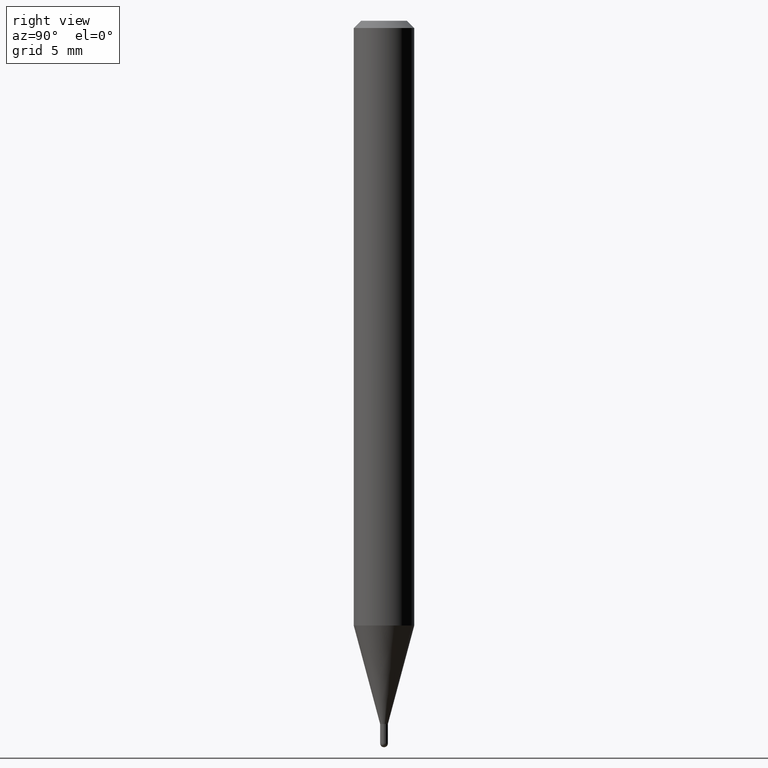
[diagram: clean part render]
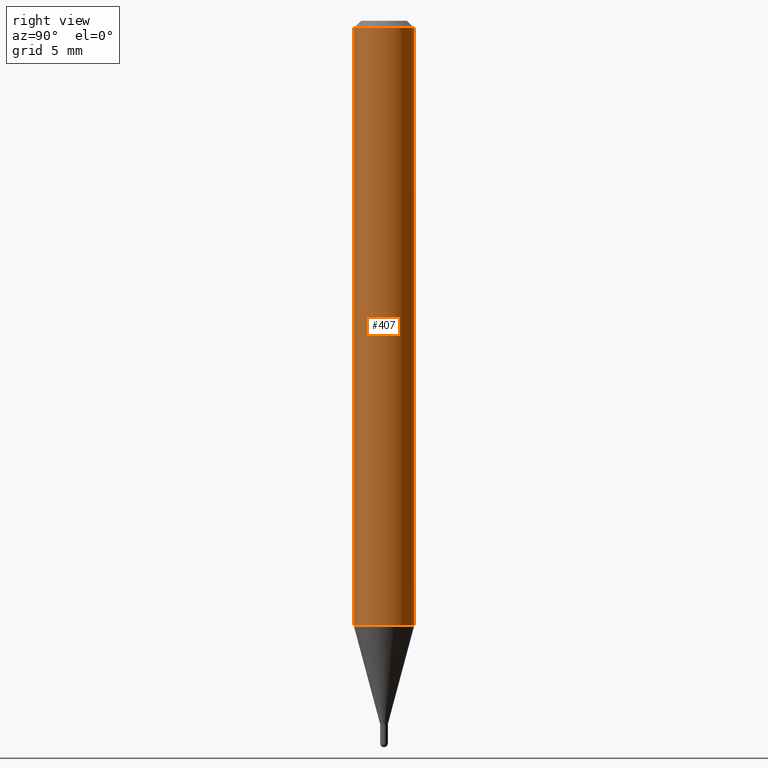
[diagram: same view with one face highlighted and labeled with its STEP entity id]
A machine part, right view. The second image highlights one B-rep face of the part: STEP entity #407.
In plain terms, the highlighted cylindrical surface (edge-blend (fillet) strip) has radius 1.5875 mm, axis along (-0, 0, 1).
Its self-contained STEP definition (entity closure, byte-faithful):
#14 = CARTESIAN_POINT ( 'NONE',  ( 3.668213498958982944E-31, -5.237207272855482496E-17, -0.01500000000000000812 ) ) ;
#17 = VERTEX_POINT ( 'NONE', #329 ) ;
#26 = EDGE_LOOP ( 'NONE', ( #475, #294, #132, #405 ) ) ;
#27 = EDGE_CURVE ( 'NONE', #235, #134, #436, .T. ) ;
#68 = CARTESIAN_POINT ( 'NONE',  ( -4.364351673553912750E-16, -0.06250000000000005551, -0.01499999999999979128 ) ) ;
#77 = DIRECTION ( 'NONE',  ( -6.982962677686265922E-15, -1.000000000000000000, 3.491471515236986079E-15 ) ) ;
#82 = EDGE_CURVE ( 'NONE', #17, #92, #382, .T. ) ;
#84 = CARTESIAN_POINT ( 'NONE',  ( -4.364351673553916201E-16, -0.06250000000000000000, 2.182169697023116300E-16 ) ) ;
#91 = DIRECTION ( 'NONE',  ( -2.445475665972653813E-29, 3.491471515236986079E-15, 1.000000000000000000 ) ) ;
#92 = VERTEX_POINT ( 'NONE', #219 ) ;
#120 = DIRECTION ( 'NONE',  ( -2.445475665972653813E-29, 3.491471515236985685E-15, 1.000000000000000000 ) ) ;
#132 = ORIENTED_EDGE ( 'NONE', *, *, #27, .F. ) ;
#134 = VERTEX_POINT ( 'NONE', #381 ) ;
#139 = AXIS2_PLACEMENT_3D ( 'NONE', #14, #441, #144 ) ;
#144 = DIRECTION ( 'NONE',  ( -6.982962677686265922E-15, -1.000000000000000000, 3.483106191921935554E-15 ) ) ;
#148 = AXIS2_PLACEMENT_3D ( 'NONE', #164, #91, #253 ) ;
#152 = FACE_OUTER_BOUND ( 'NONE', #26, .T. ) ;
#153 = EDGE_CURVE ( 'NONE', #17, #235, #233, .T. ) ;
#164 = CARTESIAN_POINT ( 'NONE',  ( 3.053428817834770725E-29, -4.359462614825733098E-15, -1.248603230987502810 ) ) ;
#219 = CARTESIAN_POINT ( 'NONE',  ( 4.440892098500929873E-16, 0.06249999999999562850, -1.248603230987503032 ) ) ;
#233 = LINE ( 'NONE', #84, #446 ) ;
#235 = VERTEX_POINT ( 'NONE', #68 ) ;
#236 = CARTESIAN_POINT ( 'NONE',  ( 0.000000000000000000, 0.000000000000000000, 0.000000000000000000 ) ) ;
#253 = DIRECTION ( 'NONE',  ( -6.982962677686265922E-15, -1.000000000000000000, 4.370956789862821150E-15 ) ) ;
#263 = AXIS2_PLACEMENT_3D ( 'NONE', #236, #390, #77 ) ;
#294 = ORIENTED_EDGE ( 'NONE', *, *, #380, .T. ) ;
#314 = CYLINDRICAL_SURFACE ( 'NONE', #263, 0.06250000000000000000 ) ;
#326 = VECTOR ( 'NONE', #120, 39.37007874015748143 ) ;
#329 = CARTESIAN_POINT ( 'NONE',  ( -4.364351673553611504E-16, -0.06250000000000437150, -1.248603230987502588 ) ) ;
#346 = DIRECTION ( 'NONE',  ( -2.445475665972653813E-29, 3.491471515236985685E-15, 1.000000000000000000 ) ) ;
#380 = EDGE_CURVE ( 'NONE', #92, #134, #394, .T. ) ;
#381 = CARTESIAN_POINT ( 'NONE',  ( 4.440892098500932831E-16, 0.06249999999999995143, -0.01500000000000022669 ) ) ;
#382 = CIRCLE ( 'NONE', #148, 0.06250000000000000000 ) ;
#390 = DIRECTION ( 'NONE',  ( -2.445475665972653813E-29, 3.491471515236986079E-15, 1.000000000000000000 ) ) ;
#394 = LINE ( 'NONE', #466, #326 ) ;
#405 = ORIENTED_EDGE ( 'NONE', *, *, #153, .F. ) ;
#407 = ADVANCED_FACE ( 'NONE', ( #152 ), #314, .T. ) ;
#436 = CIRCLE ( 'NONE', #139, 0.06250000000000000000 ) ;
#441 = DIRECTION ( 'NONE',  ( -2.445475665972653813E-29, 3.491471515236986079E-15, 1.000000000000000000 ) ) ;
#446 = VECTOR ( 'NONE', #346, 39.37007874015748143 ) ;
#466 = CARTESIAN_POINT ( 'NONE',  ( 4.440892098500625669E-16, 0.06250000000000000000, -2.182169697023116300E-16 ) ) ;
#475 = ORIENTED_EDGE ( 'NONE', *, *, #82, .T. ) ;